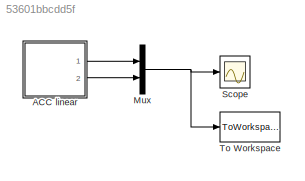
MODEL slx_53601bbcdd5f
KIND model
CONFIG AbsTol = auto
CONFIG EnableMultiTasking = off
CONFIG FixedStep = auto
CONFIG MaxStep = auto
CONFIG MinStep = auto
CONFIG RelTol = 1e-6
CONFIG SampleTimeConstraint = Unconstrained
CONFIG Solver = ode45
CONFIG SolverName = ode45
CONFIG StartTime = 0.0
CONFIG StopTime = 15
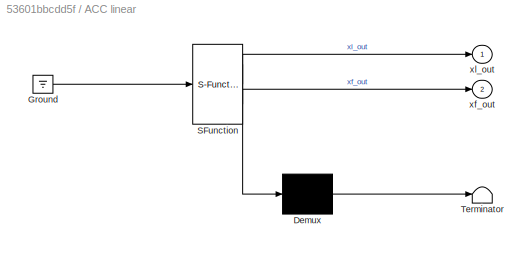
BLOCK [SubSystem] ACC linear
  ErrorFcn = Stateflow.Translate.translate
  PermitHierarchicalResolution = ExplicitOnly
  Ports = [0, 2]
  RequestExecContextInheritance = off
  SFBlockType = Chart
  TreatAsAtomicUnit = on
BLOCK [Demux] ACC linear/ Demux 
  Outputs = 1
  Ports = [1, 1]
BLOCK [Ground] ACC linear/ Ground 
BLOCK [S-Function] ACC linear/ SFunction 
  EnableBusSupport = on
  FunctionName = sf_sfun
  PortCounts = [1 3]
  Ports = [1, 3]
  SFcnIsStateOwnerBlock = off
  SFunctionDeploymentMode = off
  Tag = Stateflow S-Function ACC_nonlinear 3
BLOCK [Terminator] ACC linear/ Terminator 
BLOCK [Outport] ACC linear/xf_out
  IconDisplay = Port number
  Port = 2
BLOCK [Outport] ACC linear/xl_out
  IconDisplay = Port number
BLOCK [Mux] Mux
  DisplayOption = bar
  Inputs = 2
  Ports = [2, 1]
BLOCK [Scope] Scope
  Floating = off
  NumInputPorts = 1
  Ports = [1]
  ScopeSpecificationString = Simulink.scopes.TimeScopeBlockCfg('CurrentConfiguration', extmgr.ConfigurationSet(extmgr.Configuration('Core','General UI',true),extmgr.Configuration('Core','Source UI',true),extmgr.Configuration('Sources','WiredSimulink',true),extmgr.Configuration('Visuals','Time Domain',true,'SerializedDisplays',{struct('MinYLimReal','-11.73675','MaxYLimReal','105.63078','YLabelReal','','MinYLimMag','0.00000','M...<+1386ch>
BLOCK [ToWorkspace] To Workspace
  FixptAsFi = on
  MaxDataPoints = inf
  Ports = [1]
  SampleTime = -1
  Save2DSignal = 3-D array (concatenate along third dimension)
  SaveFormat = Timeseries
  VariableName = result
LINE ACC linear:1 -> Mux:1
LINE ACC linear:2 -> Mux:2
NET Mux:1 -> Scope:1, To Workspace:1
note: NET lines group one-source signal fan-out (src -> all destinations, sorted); 1:1 wires keep LINE
CHART ACC linear states=2 transitions=2
  STATE_LABEL 'Driving\ndu:\nt_dot = 1;\nxl_dot = 7 * sin(0.5 * t) + 7;\nxf_dot = (xl - xf);\nxl_out = xl;\nxf_out = xf;'
  STATE_LABEL 'Collision\ndu:\nt_dot = 1;\nxl_dot = 0;\nxf_dot = 0;\nxf_out = xf;\nxl_out = xl;'
